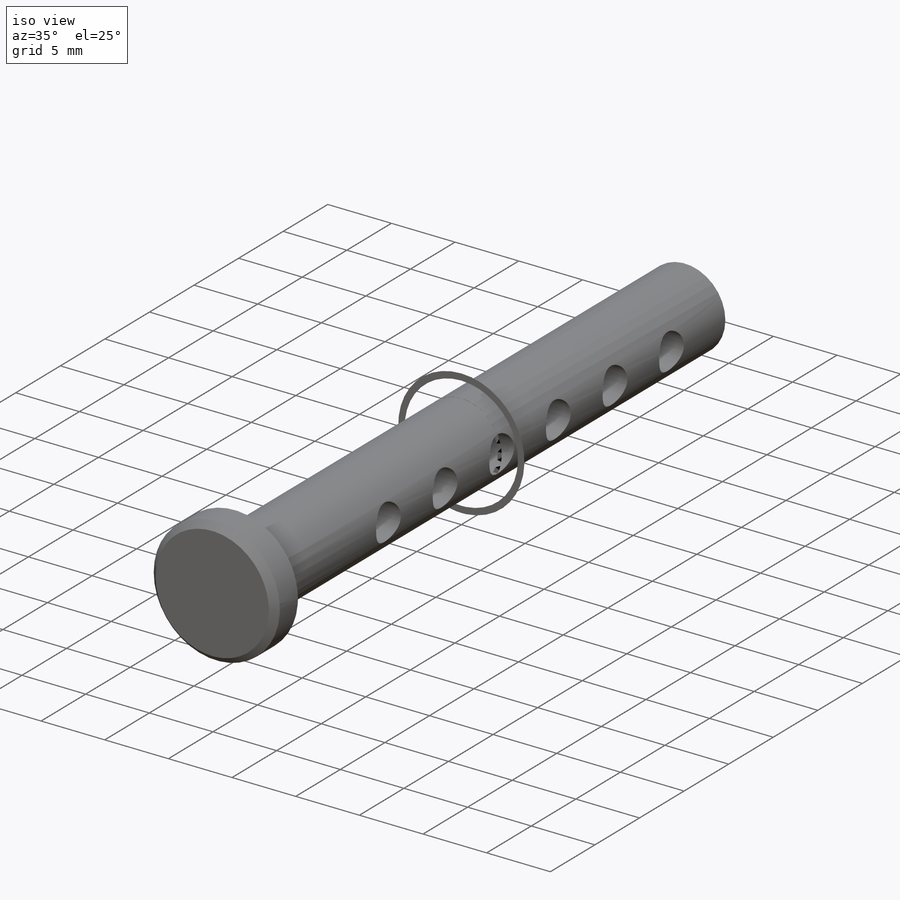
[diagram: iso view]
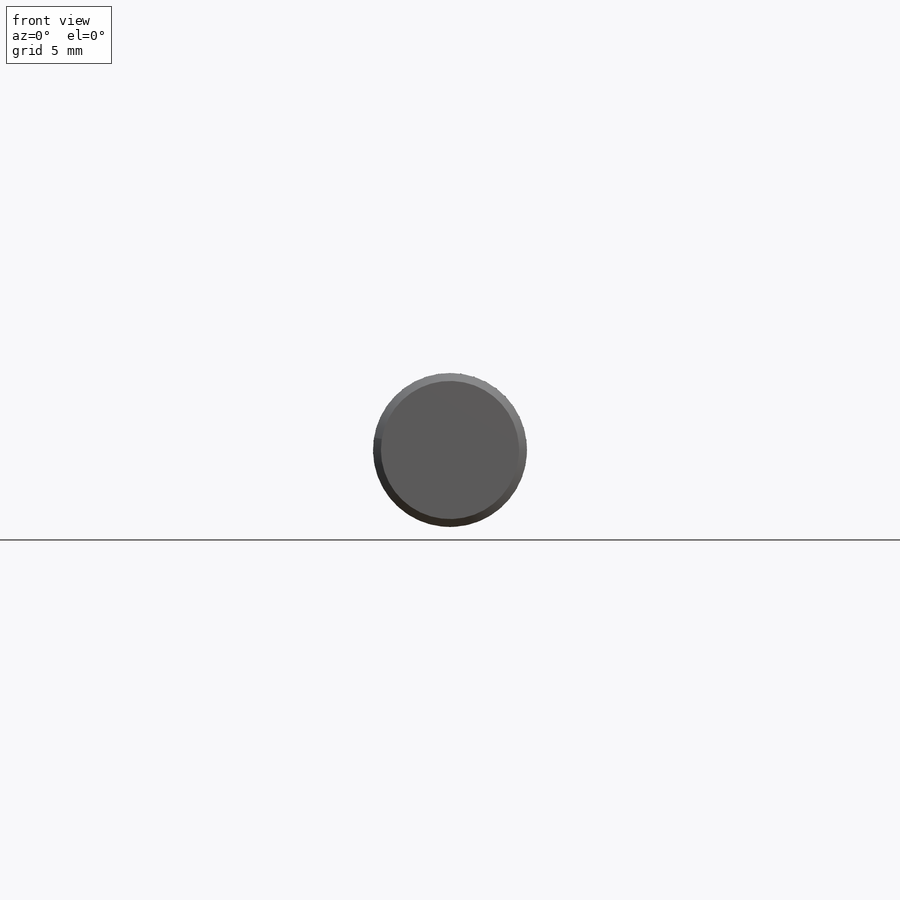
[diagram: front view]
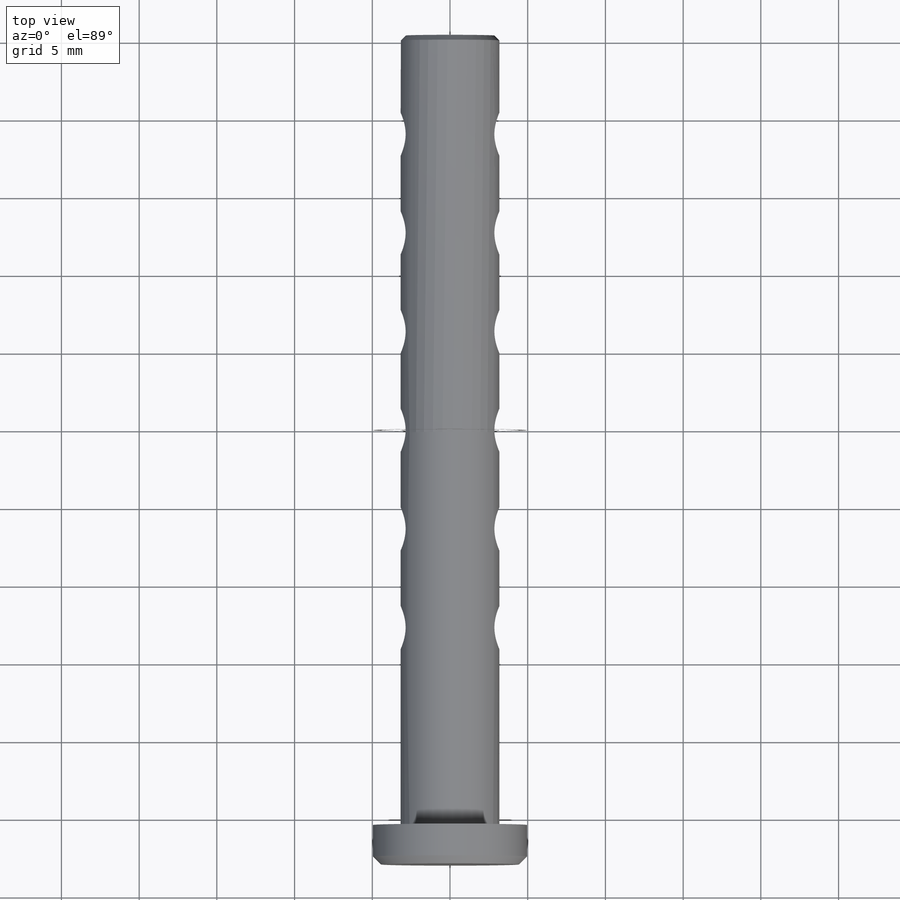
[diagram: top view]
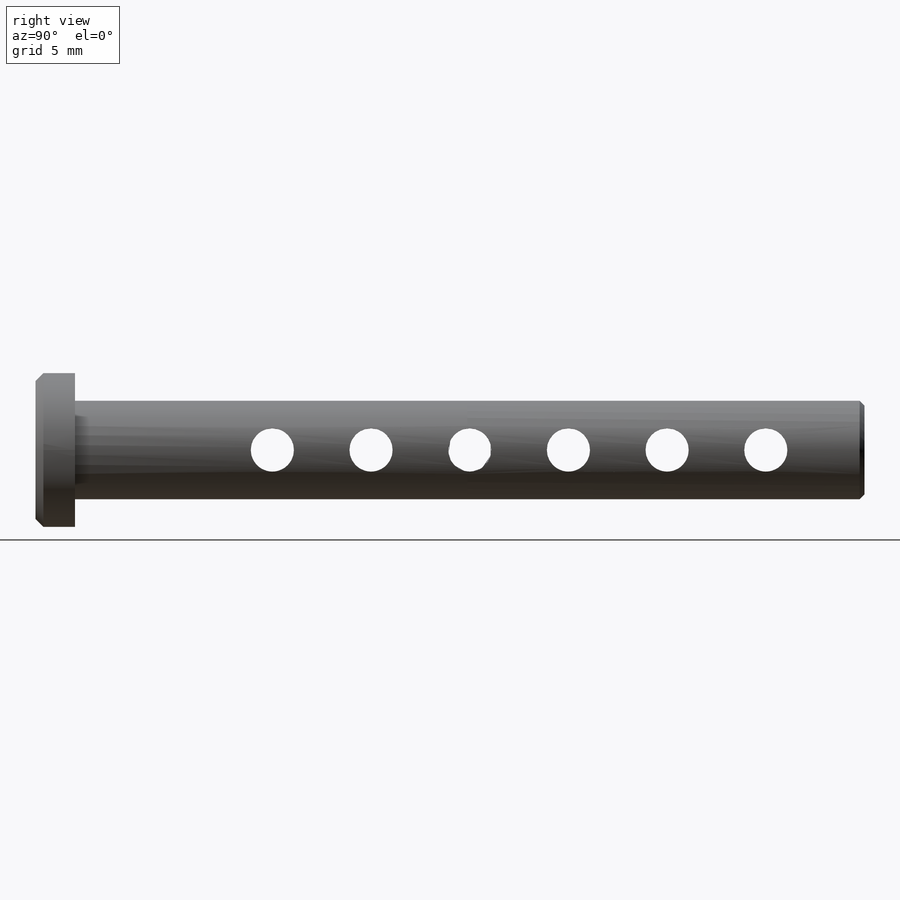
[diagram: right view]
SOLIDWORKS PART (.sldprt)
format: sldprt  version: not decoded by parser v0  size: 354,304 bytes
history: native  units: mm
features: sketch x4, extrude x2, chamfer x2, material x1, cut_extrude x1, pattern_linear x1, plane x1 (+13 scaffold rows collapsed)
feature tree (25):
  scaffold x13  (default folders/planes/origin — collapsed)
  material  "Cast Alloy Steel"
  sketch  "Sketch1"  dims[dia=6.35mm]
  extrude  "Extrude1"  Depth=50.8mm Lg=50.8mm
  sketch  "Sketch2"  dims[head dia=9.906mm]
  extrude  "Extrude2"  Depth=2.54mm head ht=2.54mm
  chamfer  "Chamfer1"  Distance=0.508mm Angle=45deg
  sketch  "Sketch3"  dims[hole dia=~2.778125mm useable Lg=44.45mm D1=6.35mm]
  cut_extrude  "Extrude3"  [1 undecoded]
  pattern_linear  "LPattern1"  Count1=6 Count2=1 Spacing1=6.35mm Spacing2=2.54mm number of holes=6
  chamfer  "Chamfer2"  Distance=0.3175mm Angle=45deg
  plane  "Plane1"
  sketch  "Sketch8"
decode coverage: 8 of 10 modeling features carry decoded parameters
note: ~ marks probable driven/reference dimensions
note: 1 parameter value undecoded
note: suppression state not decoded; provenance and decode notes live in map.json
